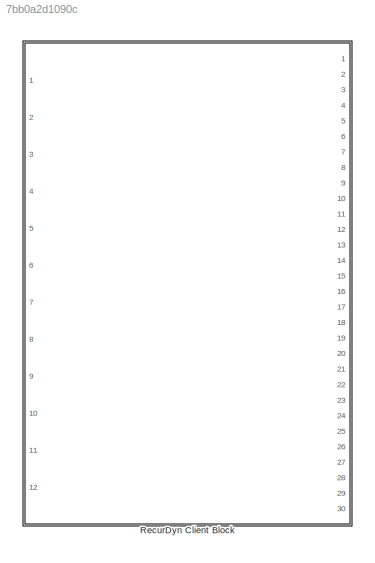
MODEL slx_7bb0a2d1090c
KIND model
CONFIG AbsTol = 1e-6
CONFIG EnableMultiTasking = off
CONFIG FixedStep = Control_timestep
CONFIG MaxStep = auto
CONFIG MinStep = auto
CONFIG RelTol = 1e-3
CONFIG SampleTimeConstraint = Unconstrained
CONFIG Solver = ode45
CONFIG SolverName = ode45
CONFIG StartTime = 0.0
CONFIG StopTime = 1.0
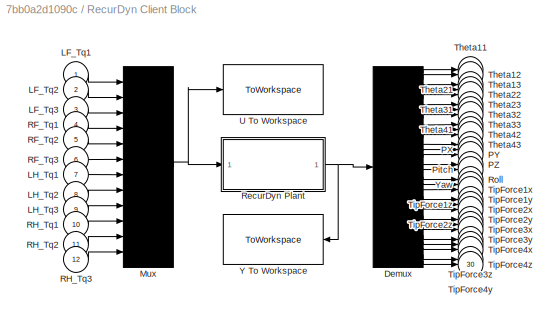
BLOCK [SubSystem] RecurDyn Client Block
  Ports = [12, 30]
  RequestExecContextInheritance = off
  ShowPortLabels = none
BLOCK [Demux] RecurDyn Client Block/Demux
  Outputs = 30
  Ports = [1, 30]
BLOCK [Inport] RecurDyn Client Block/LF_Tq1
  IconDisplay = Port number
BLOCK [Inport] RecurDyn Client Block/LF_Tq2
  IconDisplay = Port number
  Port = 2
BLOCK [Inport] RecurDyn Client Block/LF_Tq3
  IconDisplay = Port number
  Port = 3
BLOCK [Inport] RecurDyn Client Block/LH_Tq1
  IconDisplay = Port number
  Port = 7
BLOCK [Inport] RecurDyn Client Block/LH_Tq2
  IconDisplay = Port number
  Port = 8
BLOCK [Inport] RecurDyn Client Block/LH_Tq3
  IconDisplay = Port number
  Port = 9
BLOCK [Mux] RecurDyn Client Block/Mux
  Inputs = 12
  Ports = [12, 1]
BLOCK [Outport] RecurDyn Client Block/PX        
  IconDisplay = Port number
  Port = 13
BLOCK [Outport] RecurDyn Client Block/PY        
  IconDisplay = Port number
  Port = 14
BLOCK [Outport] RecurDyn Client Block/PZ        
  IconDisplay = Port number
  Port = 15
BLOCK [Outport] RecurDyn Client Block/Pitch     
  IconDisplay = Port number
  Port = 16
BLOCK [Inport] RecurDyn Client Block/RF_Tq1
  IconDisplay = Port number
  Port = 4
BLOCK [Inport] RecurDyn Client Block/RF_Tq2
  IconDisplay = Port number
  Port = 5
BLOCK [Inport] RecurDyn Client Block/RF_Tq3
  IconDisplay = Port number
  Port = 6
BLOCK [Inport] RecurDyn Client Block/RH_Tq1
  IconDisplay = Port number
  Port = 10
BLOCK [Inport] RecurDyn Client Block/RH_Tq2
  IconDisplay = Port number
  Port = 11
BLOCK [Inport] RecurDyn Client Block/RH_Tq3
  IconDisplay = Port number
  Port = 12
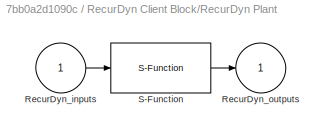
BLOCK [SubSystem] RecurDyn Client Block/RecurDyn Plant
  Ports = [1, 1]
  RequestExecContextInheritance = off
BLOCK [Inport] RecurDyn Client Block/RecurDyn Plant/ RecurDyn_inputs
  IconDisplay = Port number
BLOCK [Outport] RecurDyn Client Block/RecurDyn Plant/RecurDyn_outputs
  IconDisplay = Port number
  InitialOutput = 0
BLOCK [S-Function] RecurDyn Client Block/RecurDyn Plant/S-Function
  EnableBusSupport = off
  FunctionName = recurdyn_client_9_1
  Parameters = RecurDyn_controltimestep_,RecurDyn_model_name,RecurDyn_,RecurDyn_static_,RecurDyn_step_,RecurDyn_show_,RecurDyn_ani_,Matlab_version_,RecurDyn_model_n,Plant_inputs_num,Plant_outputs_num,Waitingtime,Create_Output_Folder_,Output_File_Name_,Output_file_n
  Ports = [1, 1]
  SFcnIsStateOwnerBlock = off
  SFunctionDeploymentMode = off
BLOCK [Outport] RecurDyn Client Block/Roll      
  IconDisplay = Port number
  Port = 17
BLOCK [Outport] RecurDyn Client Block/Theta11   
  IconDisplay = Port number
BLOCK [Outport] RecurDyn Client Block/Theta12   
  IconDisplay = Port number
  Port = 2
BLOCK [Outport] RecurDyn Client Block/Theta13   
  IconDisplay = Port number
  Port = 3
BLOCK [Outport] RecurDyn Client Block/Theta21   
  IconDisplay = Port number
  Port = 4
BLOCK [Outport] RecurDyn Client Block/Theta22   
  IconDisplay = Port number
  Port = 5
BLOCK [Outport] RecurDyn Client Block/Theta23   
  IconDisplay = Port number
  Port = 6
BLOCK [Outport] RecurDyn Client Block/Theta31   
  IconDisplay = Port number
  Port = 7
BLOCK [Outport] RecurDyn Client Block/Theta32   
  IconDisplay = Port number
  Port = 8
BLOCK [Outport] RecurDyn Client Block/Theta33   
  IconDisplay = Port number
  Port = 9
BLOCK [Outport] RecurDyn Client Block/Theta41   
  IconDisplay = Port number
  Port = 10
BLOCK [Outport] RecurDyn Client Block/Theta42   
  IconDisplay = Port number
  Port = 11
BLOCK [Outport] RecurDyn Client Block/Theta43   
  IconDisplay = Port number
  Port = 12
BLOCK [Outport] RecurDyn Client Block/TipForce1x
  IconDisplay = Port number
  Port = 19
BLOCK [Outport] RecurDyn Client Block/TipForce1y
  IconDisplay = Port number
  Port = 20
BLOCK [Outport] RecurDyn Client Block/TipForce1z
  IconDisplay = Port number
  Port = 21
BLOCK [Outport] RecurDyn Client Block/TipForce2x
  IconDisplay = Port number
  Port = 22
BLOCK [Outport] RecurDyn Client Block/TipForce2y
  IconDisplay = Port number
  Port = 23
BLOCK [Outport] RecurDyn Client Block/TipForce2z
  IconDisplay = Port number
  Port = 24
BLOCK [Outport] RecurDyn Client Block/TipForce3x
  IconDisplay = Port number
  Port = 25
BLOCK [Outport] RecurDyn Client Block/TipForce3y
  IconDisplay = Port number
  Port = 26
BLOCK [Outport] RecurDyn Client Block/TipForce3z
  IconDisplay = Port number
  Port = 27
BLOCK [Outport] RecurDyn Client Block/TipForce4x
  IconDisplay = Port number
  Port = 28
BLOCK [Outport] RecurDyn Client Block/TipForce4y
  IconDisplay = Port number
  Port = 29
BLOCK [Outport] RecurDyn Client Block/TipForce4z
  IconDisplay = Port number
  Port = 30
BLOCK [ToWorkspace] RecurDyn Client Block/U To Workspace
  MaxDataPoints = inf
  Ports = [1]
  VariableName = RecurDyn_inputs
BLOCK [ToWorkspace] RecurDyn Client Block/Y To Workspace
  MaxDataPoints = inf
  Ports = [1]
  VariableName = RecurDyn_outputs
BLOCK [Outport] RecurDyn Client Block/Yaw       
  IconDisplay = Port number
  Port = 18
LINE RecurDyn Client Block/Demux:1 -> RecurDyn Client Block/Theta11   :1
LINE RecurDyn Client Block/Demux:10 -> RecurDyn Client Block/Theta41   :1
LINE RecurDyn Client Block/Demux:11 -> RecurDyn Client Block/Theta42   :1
LINE RecurDyn Client Block/Demux:12 -> RecurDyn Client Block/Theta43   :1
LINE RecurDyn Client Block/Demux:13 -> RecurDyn Client Block/PX        :1
LINE RecurDyn Client Block/Demux:14 -> RecurDyn Client Block/PY        :1
LINE RecurDyn Client Block/Demux:15 -> RecurDyn Client Block/PZ        :1
LINE RecurDyn Client Block/Demux:16 -> RecurDyn Client Block/Pitch     :1
LINE RecurDyn Client Block/Demux:17 -> RecurDyn Client Block/Roll      :1
LINE RecurDyn Client Block/Demux:18 -> RecurDyn Client Block/Yaw       :1
LINE RecurDyn Client Block/Demux:19 -> RecurDyn Client Block/TipForce1x:1
LINE RecurDyn Client Block/Demux:2 -> RecurDyn Client Block/Theta12   :1
LINE RecurDyn Client Block/Demux:20 -> RecurDyn Client Block/TipForce1y:1
LINE RecurDyn Client Block/Demux:21 -> RecurDyn Client Block/TipForce1z:1
LINE RecurDyn Client Block/Demux:22 -> RecurDyn Client Block/TipForce2x:1
LINE RecurDyn Client Block/Demux:23 -> RecurDyn Client Block/TipForce2y:1
LINE RecurDyn Client Block/Demux:24 -> RecurDyn Client Block/TipForce2z:1
LINE RecurDyn Client Block/Demux:25 -> RecurDyn Client Block/TipForce3x:1
LINE RecurDyn Client Block/Demux:26 -> RecurDyn Client Block/TipForce3y:1
LINE RecurDyn Client Block/Demux:27 -> RecurDyn Client Block/TipForce3z:1
LINE RecurDyn Client Block/Demux:28 -> RecurDyn Client Block/TipForce4x:1
LINE RecurDyn Client Block/Demux:29 -> RecurDyn Client Block/TipForce4y:1
LINE RecurDyn Client Block/Demux:3 -> RecurDyn Client Block/Theta13   :1
LINE RecurDyn Client Block/Demux:30 -> RecurDyn Client Block/TipForce4z:1
LINE RecurDyn Client Block/Demux:4 -> RecurDyn Client Block/Theta21   :1
LINE RecurDyn Client Block/Demux:5 -> RecurDyn Client Block/Theta22   :1
LINE RecurDyn Client Block/Demux:6 -> RecurDyn Client Block/Theta23   :1
LINE RecurDyn Client Block/Demux:7 -> RecurDyn Client Block/Theta31   :1
LINE RecurDyn Client Block/Demux:8 -> RecurDyn Client Block/Theta32   :1
LINE RecurDyn Client Block/Demux:9 -> RecurDyn Client Block/Theta33   :1
LINE RecurDyn Client Block/LF_Tq1:1 -> RecurDyn Client Block/Mux:1
LINE RecurDyn Client Block/LF_Tq2:1 -> RecurDyn Client Block/Mux:2
LINE RecurDyn Client Block/LF_Tq3:1 -> RecurDyn Client Block/Mux:3
LINE RecurDyn Client Block/LH_Tq1:1 -> RecurDyn Client Block/Mux:7
LINE RecurDyn Client Block/LH_Tq2:1 -> RecurDyn Client Block/Mux:8
LINE RecurDyn Client Block/LH_Tq3:1 -> RecurDyn Client Block/Mux:9
NET RecurDyn Client Block/Mux:1 -> RecurDyn Client Block/RecurDyn Plant:1, RecurDyn Client Block/U To Workspace:1
LINE RecurDyn Client Block/RF_Tq1:1 -> RecurDyn Client Block/Mux:4
LINE RecurDyn Client Block/RF_Tq2:1 -> RecurDyn Client Block/Mux:5
LINE RecurDyn Client Block/RF_Tq3:1 -> RecurDyn Client Block/Mux:6
LINE RecurDyn Client Block/RH_Tq1:1 -> RecurDyn Client Block/Mux:10
LINE RecurDyn Client Block/RH_Tq2:1 -> RecurDyn Client Block/Mux:11
LINE RecurDyn Client Block/RH_Tq3:1 -> RecurDyn Client Block/Mux:12
LINE RecurDyn Client Block/RecurDyn Plant/ RecurDyn_inputs:1 -> RecurDyn Client Block/RecurDyn Plant/S-Function:1
LINE RecurDyn Client Block/RecurDyn Plant/S-Function:1 -> RecurDyn Client Block/RecurDyn Plant/RecurDyn_outputs:1
NET RecurDyn Client Block/RecurDyn Plant:1 -> RecurDyn Client Block/Demux:1, RecurDyn Client Block/Y To Workspace:1
note: NET lines group one-source signal fan-out (src -> all destinations, sorted); 1:1 wires keep LINE
